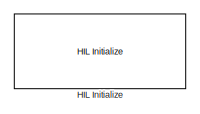
[diagram: root canvas - part 1/2, top left region]
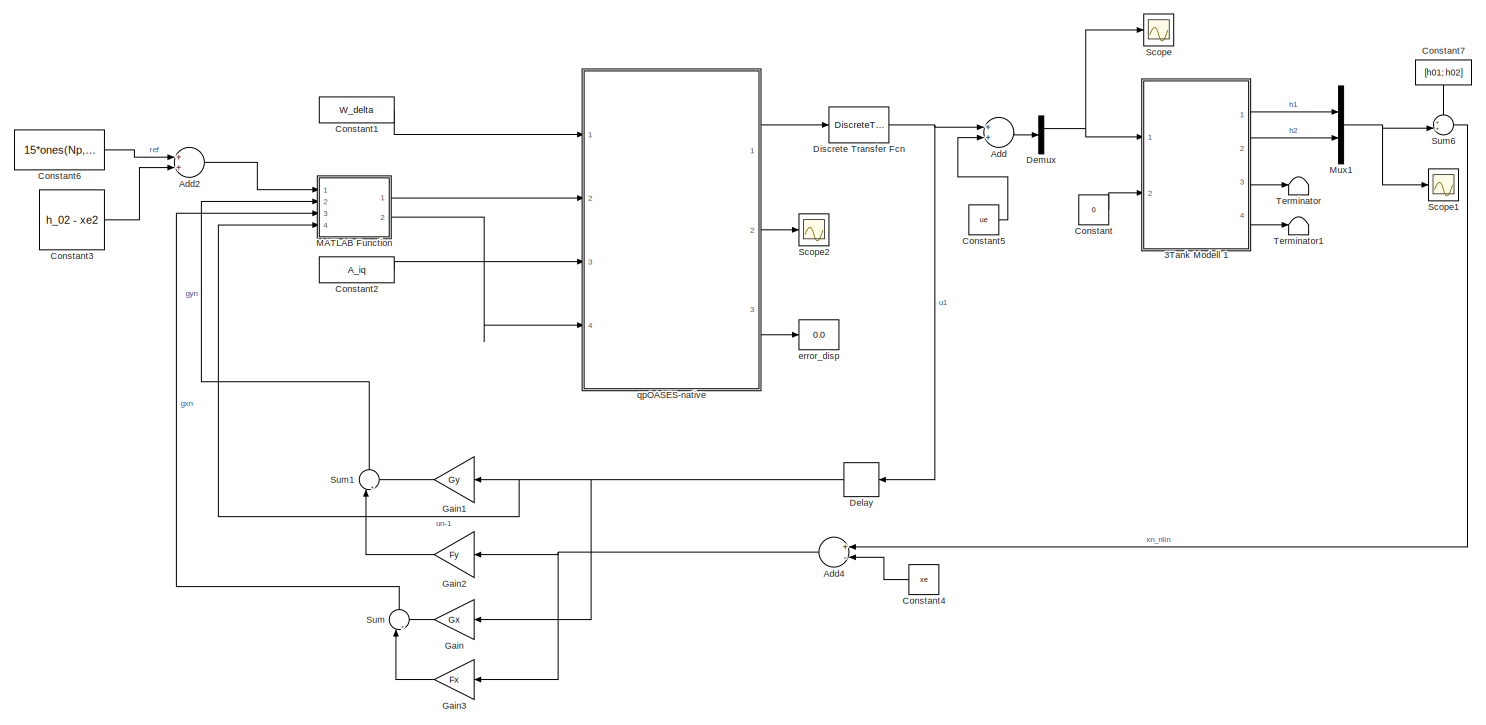
[diagram: root canvas - part 2/2, most of the canvas]
MODEL slx_f061217825dd
KIND model
CONFIG AbsTol = auto
CONFIG EnableMultiTasking = on
CONFIG FixedStep = Td
CONFIG MaxStep = auto
CONFIG MinStep = auto
CONFIG RelTol = 1e-3
CONFIG SampleTimeConstraint = Unconstrained
CONFIG Solver = ode1
CONFIG SolverName = ode1
CONFIG StartTime = 0.0
CONFIG StopTime = inf
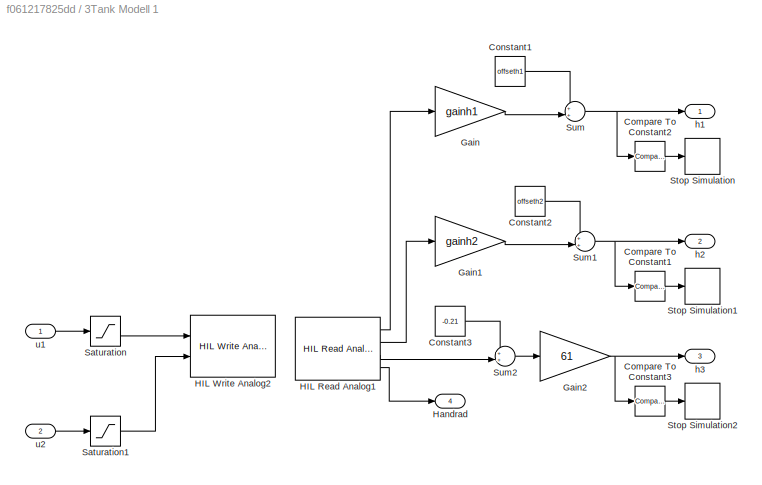
BLOCK [SubSystem] 3Tank Modell 1
  Ports = [2, 4]
  RequestExecContextInheritance = off
BLOCK [Reference] 3Tank Modell 1/Compare To Constant1  REF=simulink/Logic and Bit
Operations/Compare
To Constant
  Ports = [1, 1]
  SourceBlock = simulink/Logic and Bit\nOperations/Compare\nTo Constant
  SourceProductBaseCode = SL
  SourceProductName = Simulink
  SourceType = Compare To Constant
BLOCK [Reference] 3Tank Modell 1/Compare To Constant2  REF=simulink/Logic and Bit
Operations/Compare
To Constant
  Ports = [1, 1]
  SourceBlock = simulink/Logic and Bit\nOperations/Compare\nTo Constant
  SourceProductBaseCode = SL
  SourceProductName = Simulink
  SourceType = Compare To Constant
BLOCK [Reference] 3Tank Modell 1/Compare To Constant3  REF=simulink/Logic and Bit
Operations/Compare
To Constant
  Commented = on
  Ports = [1, 1]
  SourceBlock = simulink/Logic and Bit\nOperations/Compare\nTo Constant
  SourceProductBaseCode = SL
  SourceProductName = Simulink
  SourceType = Compare To Constant
BLOCK [Constant] 3Tank Modell 1/Constant1
  Value = offseth1
BLOCK [Constant] 3Tank Modell 1/Constant2
  Value = offseth2
BLOCK [Constant] 3Tank Modell 1/Constant3
  Value = -0.21
BLOCK [Gain] 3Tank Modell 1/Gain
  Gain = gainh1
  OutDataTypeStr = Inherit: Inherit via internal rule
  ParamDataTypeStr = Inherit: Inherit via internal rule
  SaturateOnIntegerOverflow = off
BLOCK [Gain] 3Tank Modell 1/Gain1
  Gain = gainh2
  OutDataTypeStr = Inherit: Inherit via internal rule
  ParamDataTypeStr = Inherit: Inherit via internal rule
  SaturateOnIntegerOverflow = off
BLOCK [Gain] 3Tank Modell 1/Gain2
  Gain = 61
  OutDataTypeStr = Inherit: Inherit via internal rule
  ParamDataTypeStr = Inherit: Inherit via internal rule
  SaturateOnIntegerOverflow = off
BLOCK [Reference] 3Tank Modell 1/HIL Read Analog1  REF=quarc_library/Data Acquisition/Generic/Immediate I//O/HIL Read Analog
  AttributesFormatString = (%<object_name>)
  Ports = [0, 4]
  SourceBlock = quarc_library/Data Acquisition/Generic/Immediate I//O/HIL Read Analog
  SourceProductName = QUARC Targets
  SourceType = HIL Read Analog
  UserDataPersistent = on
BLOCK [Reference] 3Tank Modell 1/HIL Write Analog2  REF=quarc_library/Data Acquisition/Generic/Immediate I//O/HIL Write Analog
  AttributesFormatString = (%<object_name>)
  Ports = [2]
  SourceBlock = quarc_library/Data Acquisition/Generic/Immediate I//O/HIL Write Analog
  SourceProductName = QUARC Targets
  SourceType = HIL Write Analog
  UserDataPersistent = on
BLOCK [Outport] 3Tank Modell 1/Handrad
  IconDisplay = Port number
  Port = 4
BLOCK [Saturate] 3Tank Modell 1/Saturation
  InputPortMap = u0
  LowerLimit = 0
  Ports = [1, 1]
  UpperLimit = 10
BLOCK [Saturate] 3Tank Modell 1/Saturation1
  InputPortMap = u0
  LowerLimit = 0
  Ports = [1, 1]
  UpperLimit = 10
BLOCK [Stop] 3Tank Modell 1/Stop Simulation
BLOCK [Stop] 3Tank Modell 1/Stop Simulation1
BLOCK [Stop] 3Tank Modell 1/Stop Simulation2
  Commented = on
BLOCK [Sum] 3Tank Modell 1/Sum
  IconShape = round
  InputSameDT = off
  Inputs = ++|
  OutDataTypeStr = Inherit: Inherit via internal rule
  Ports = [2, 1]
  SaturateOnIntegerOverflow = off
BLOCK [Sum] 3Tank Modell 1/Sum1
  IconShape = round
  InputSameDT = off
  Inputs = ++|
  OutDataTypeStr = Inherit: Inherit via internal rule
  Ports = [2, 1]
  SaturateOnIntegerOverflow = off
BLOCK [Sum] 3Tank Modell 1/Sum2
  IconShape = round
  InputSameDT = off
  Inputs = ++|
  OutDataTypeStr = Inherit: Inherit via internal rule
  Ports = [2, 1]
  SaturateOnIntegerOverflow = off
BLOCK [Outport] 3Tank Modell 1/h1
  IconDisplay = Port number
BLOCK [Outport] 3Tank Modell 1/h2
  IconDisplay = Port number
  Port = 2
BLOCK [Outport] 3Tank Modell 1/h3
  IconDisplay = Port number
  Port = 3
BLOCK [Inport] 3Tank Modell 1/u1
  IconDisplay = Port number
BLOCK [Inport] 3Tank Modell 1/u2
  IconDisplay = Port number
  Port = 2
BLOCK [Sum] Add
  InputSameDT = off
  OutDataTypeStr = Inherit: Inherit via internal rule
  Ports = [2, 1]
  SaturateOnIntegerOverflow = off
BLOCK [Sum] Add2
  InputSameDT = off
  OutDataTypeStr = Inherit: Inherit via internal rule
  Ports = [2, 1]
  SaturateOnIntegerOverflow = off
BLOCK [Sum] Add4
  InputSameDT = off
  Inputs = +-
  OutDataTypeStr = Inherit: Inherit via internal rule
  Ports = [2, 1]
  SaturateOnIntegerOverflow = off
BLOCK [Constant] Constant
  Value = 0
BLOCK [Constant] Constant1
  Value = W_delta
BLOCK [Constant] Constant2
  Value = A_iq
BLOCK [Constant] Constant3
  Value = h_02 - xe2
BLOCK [Constant] Constant4
  Value = xe
BLOCK [Constant] Constant5
  Value = ue
BLOCK [Constant] Constant6
  Value = 15*ones(Np,1)
BLOCK [Constant] Constant7
  Value = [h01; h02]
BLOCK [Delay] Delay
  DelayLength = 1
  InitialCondition = [0;0]
  InputPortMap = u0
  Ports = [1, 1]
  SampleTime = Td
BLOCK [Demux] Demux
  DisplayOption = bar
  Outputs = 2
  Ports = [1, 2]
BLOCK [DiscreteTransferFcn] Discrete Transfer Fcn
  Denominator = [1 -1]
  InitialStates = [0;0]
  InputPortMap = u0
  Numerator = [1 0]
  Ports = [1, 1]
  SampleTime = Td
BLOCK [Gain] Gain
  Gain = Gx
  Multiplication = Matrix(K*u)
  OutDataTypeStr = Inherit: Inherit via internal rule
  ParamDataTypeStr = Inherit: Inherit via internal rule
  SaturateOnIntegerOverflow = off
BLOCK [Gain] Gain1
  Gain = Gy
  Multiplication = Matrix(K*u)
  OutDataTypeStr = Inherit: Inherit via internal rule
  ParamDataTypeStr = Inherit: Inherit via internal rule
  SaturateOnIntegerOverflow = off
BLOCK [Gain] Gain2
  Gain = Fy
  Multiplication = Matrix(K*u)
  OutDataTypeStr = Inherit: Inherit via internal rule
  ParamDataTypeStr = Inherit: Inherit via internal rule
  SaturateOnIntegerOverflow = off
BLOCK [Gain] Gain3
  Gain = Fx
  Multiplication = Matrix(K*u)
  OutDataTypeStr = Inherit: Inherit via internal rule
  ParamDataTypeStr = Inherit: Inherit via internal rule
  SaturateOnIntegerOverflow = off
BLOCK [Reference] HIL Initialize  REF=quarc_library/Data Acquisition/Generic/Configuration/HIL Initialize
  AttributesFormatString = %<object_name> (%<board_type>-%<board_number>)
  Ports = []
  SourceBlock = quarc_library/Data Acquisition/Generic/Configuration/HIL Initialize
  SourceProductName = QUARC Targets
  SourceType = HIL Initialize
  UserDataPersistent = on
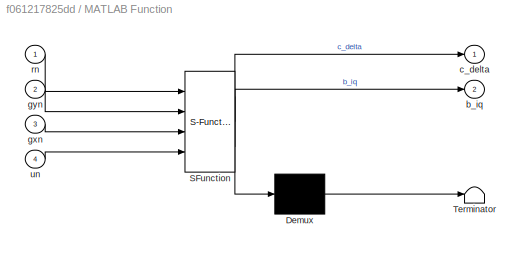
BLOCK [SubSystem] MATLAB Function
  ErrorFcn = Stateflow.Translate.translate
  PermitHierarchicalResolution = ExplicitOnly
  Ports = [4, 2]
  RequestExecContextInheritance = off
  SFBlockType = MATLAB Function
  TreatAsAtomicUnit = on
BLOCK [Demux] MATLAB Function/ Demux 
  Outputs = 1
  Ports = [1, 1]
BLOCK [S-Function] MATLAB Function/ SFunction 
  EnableBusSupport = on
  FunctionName = sf_sfun
  Parameters = Hy,L,Qy,roh,u_max,u_min,x_max,x_min
  PortCounts = [4 3]
  Ports = [4, 3]
  SFcnIsStateOwnerBlock = off
  SFunctionDeploymentMode = off
  Tag = Stateflow S-Function MPC 2
BLOCK [Terminator] MATLAB Function/ Terminator 
BLOCK [Outport] MATLAB Function/b_iq
  IconDisplay = Port number
  Port = 2
BLOCK [Outport] MATLAB Function/c_delta
  IconDisplay = Port number
BLOCK [Inport] MATLAB Function/gxn
  IconDisplay = Port number
  Port = 3
BLOCK [Inport] MATLAB Function/gyn
  IconDisplay = Port number
  Port = 2
BLOCK [Inport] MATLAB Function/rn
  IconDisplay = Port number
BLOCK [Inport] MATLAB Function/un
  IconDisplay = Port number
  Port = 4
BLOCK [Mux] Mux1
  DisplayOption = bar
  Inputs = 2
  Ports = [2, 1]
BLOCK [Scope] Scope
  Floating = off
  NumInputPorts = 1
  Ports = [1]
  ScopeSpecificationString = Simulink.scopes.TimeScopeBlockCfg('CurrentConfiguration', extmgr.ConfigurationSet(extmgr.Configuration('Core','General UI',true),extmgr.Configuration('Core','Source UI',true),extmgr.Configuration('Sources','WiredSimulink',true),extmgr.Configuration('Visuals','Time Domain',true,'SerializedDisplays',{struct('MinYLimReal','9.99312','MaxYLimReal','10.06191','YLabelReal','','MinYLimMag','9.99312','MaxY...<+1359ch>
BLOCK [Scope] Scope1
  Floating = off
  NumInputPorts = 1
  Ports = [1]
  ScopeSpecificationString = Simulink.scopes.TimeScopeBlockCfg('CurrentConfiguration', extmgr.ConfigurationSet(extmgr.Configuration('Core','General UI',true),extmgr.Configuration('Core','Source UI',true),extmgr.Configuration('Sources','WiredSimulink',true,'DataLoggingVariableName','ScopeData2'),extmgr.Configuration('Visuals','Time Domain',true,'SerializedDisplays',{struct('MinYLimReal','-1.78347','MaxYLimReal','15.66658','YLa...<+1731ch>
BLOCK [Scope] Scope2
  Floating = off
  NumInputPorts = 1
  Ports = [1]
  ScopeSpecificationString = Simulink.scopes.TimeScopeBlockCfg('CurrentConfiguration', extmgr.ConfigurationSet(extmgr.Configuration('Core','General UI',true),extmgr.Configuration('Core','Source UI',true),extmgr.Configuration('Sources','WiredSimulink',true,'DataLoggingVariableName','ScopeData1'),extmgr.Configuration('Visuals','Time Domain',true,'SerializedDisplays',{struct('MinYLimReal','-2.00000','MaxYLimReal','18.00000','YLa...<+1393ch>
BLOCK [Sum] Sum
  IconShape = round
  InputSameDT = off
  Inputs = |++
  OutDataTypeStr = Inherit: Inherit via internal rule
  Ports = [2, 1]
  SaturateOnIntegerOverflow = off
BLOCK [Sum] Sum1
  IconShape = round
  InputSameDT = off
  Inputs = |++
  OutDataTypeStr = Inherit: Inherit via internal rule
  Ports = [2, 1]
  SaturateOnIntegerOverflow = off
BLOCK [Sum] Sum6
  IconShape = round
  InputSameDT = off
  Inputs = ++|
  OutDataTypeStr = Inherit: Inherit via internal rule
  Ports = [2, 1]
  SaturateOnIntegerOverflow = off
BLOCK [Terminator] Terminator
BLOCK [Terminator] Terminator1
BLOCK [Display] error_disp
  Decimation = 1
  Ports = [1]
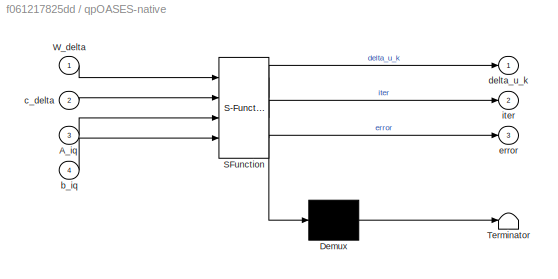
BLOCK [SubSystem] qpOASES-native
  ErrorFcn = Stateflow.Translate.translate
  PermitHierarchicalResolution = ExplicitOnly
  Ports = [4, 3]
  RequestExecContextInheritance = off
  SFBlockType = MATLAB Function
  TreatAsAtomicUnit = on
BLOCK [Demux] qpOASES-native/ Demux 
  Outputs = 1
  Ports = [1, 1]
BLOCK [S-Function] qpOASES-native/ SFunction 
  EnableBusSupport = on
  FunctionName = sf_sfun
  Parameters = Nc,m
  PortCounts = [4 4]
  Ports = [4, 4]
  SFcnIsStateOwnerBlock = off
  SFunctionDeploymentMode = off
  Tag = Stateflow S-Function MPC 5
BLOCK [Terminator] qpOASES-native/ Terminator 
BLOCK [Inport] qpOASES-native/A_iq
  IconDisplay = Port number
  Port = 3
BLOCK [Inport] qpOASES-native/W_delta
  IconDisplay = Port number
BLOCK [Inport] qpOASES-native/b_iq
  IconDisplay = Port number
  Port = 4
BLOCK [Inport] qpOASES-native/c_delta
  IconDisplay = Port number
  Port = 2
BLOCK [Outport] qpOASES-native/delta_u_k
  IconDisplay = Port number
BLOCK [Outport] qpOASES-native/error
  IconDisplay = Port number
  Port = 3
BLOCK [Outport] qpOASES-native/iter
  IconDisplay = Port number
  Port = 2
LINE 3Tank Modell 1/Compare To Constant1:1 -> 3Tank Modell 1/Stop Simulation1:1
LINE 3Tank Modell 1/Compare To Constant2:1 -> 3Tank Modell 1/Stop Simulation:1
LINE 3Tank Modell 1/Compare To Constant3:1 -> 3Tank Modell 1/Stop Simulation2:1
LINE 3Tank Modell 1/Constant1:1 -> 3Tank Modell 1/Sum:1
LINE 3Tank Modell 1/Constant2:1 -> 3Tank Modell 1/Sum1:1
LINE 3Tank Modell 1/Constant3:1 -> 3Tank Modell 1/Sum2:1
LINE 3Tank Modell 1/Gain1:1 -> 3Tank Modell 1/Sum1:2
NET 3Tank Modell 1/Gain2:1 -> 3Tank Modell 1/Compare To Constant3:1, 3Tank Modell 1/h3:1
LINE 3Tank Modell 1/Gain:1 -> 3Tank Modell 1/Sum:2
LINE 3Tank Modell 1/HIL Read Analog1:1 -> 3Tank Modell 1/Gain:1
LINE 3Tank Modell 1/HIL Read Analog1:2 -> 3Tank Modell 1/Gain1:1
LINE 3Tank Modell 1/HIL Read Analog1:3 -> 3Tank Modell 1/Sum2:2
LINE 3Tank Modell 1/HIL Read Analog1:4 -> 3Tank Modell 1/Handrad:1
LINE 3Tank Modell 1/Saturation1:1 -> 3Tank Modell 1/HIL Write Analog2:2
LINE 3Tank Modell 1/Saturation:1 -> 3Tank Modell 1/HIL Write Analog2:1
NET 3Tank Modell 1/Sum1:1 -> 3Tank Modell 1/Compare To Constant1:1, 3Tank Modell 1/h2:1
LINE 3Tank Modell 1/Sum2:1 -> 3Tank Modell 1/Gain2:1
NET 3Tank Modell 1/Sum:1 -> 3Tank Modell 1/Compare To Constant2:1, 3Tank Modell 1/h1:1
LINE 3Tank Modell 1/u1:1 -> 3Tank Modell 1/Saturation:1
LINE 3Tank Modell 1/u2:1 -> 3Tank Modell 1/Saturation1:1
LINE 3Tank Modell 1:1 -> Mux1:1
LINE 3Tank Modell 1:2 -> Mux1:2
LINE 3Tank Modell 1:3 -> Terminator:1
LINE 3Tank Modell 1:4 -> Terminator1:1
LINE Add2:1 -> MATLAB Function:1
NET Add4:1 -> Gain2:1, Gain3:1
LINE Add:1 -> Demux:1
LINE Constant1:1 -> qpOASES-native:1
LINE Constant2:1 -> qpOASES-native:3
LINE Constant3:1 -> Add2:2
LINE Constant4:1 -> Add4:2
LINE Constant5:1 -> Add:2
LINE Constant6:1 -> Add2:1
LINE Constant7:1 -> Sum6:1
LINE Constant:1 -> 3Tank Modell 1:2
NET Delay:1 -> Gain1:1, Gain:1, MATLAB Function:4
NET Demux:1 -> 3Tank Modell 1:1, Scope:1
NET Discrete Transfer Fcn:1 -> Add:1, Delay:1
LINE Gain1:1 -> Sum1:2
LINE Gain2:1 -> Sum1:1
LINE Gain3:1 -> Sum:1
LINE Gain:1 -> Sum:2
LINE MATLAB Function:1 -> qpOASES-native:2
LINE MATLAB Function:2 -> qpOASES-native:4
NET Mux1:1 -> Scope1:1, Sum6:2
LINE Sum1:1 -> MATLAB Function:2
LINE Sum6:1 -> Add4:1
LINE Sum:1 -> MATLAB Function:3
LINE qpOASES-native:1 -> Discrete Transfer Fcn:1
LINE qpOASES-native:2 -> Scope2:1
LINE qpOASES-native:3 -> error_disp:1
note: NET lines group one-source signal fan-out (src -> all destinations, sorted); 1:1 wires keep LINE
CHART MATLAB Function states=1 transitions=1
  STATE_LABEL 'eML_blk_kernel()'
  STATE_LABEL "SCRIPT:\nfunction [c_delta, b_iq] = fcn(rn, gyn, gxn, un, Qy, L, u_min, u_max, x_min, x_max, Hy, roh)\nw_bar = [L*un-u_min;u_max-L*un;gxn-x_min;x_max-gxn];\nen = gyn - rn;\nc_delta = [2'*Hy'*Qy*en; roh];\nb_iq = [w_bar; roh];\n"
CHART qpOASES-native states=1 transitions=1
  STATE_LABEL 'eML_blk_kernel()'
  STATE_LABEL "SCRIPT:\nfunction [delta_u_k, iter, error] = fcn(W_delta, c_delta, A_iq, b_iq, m, Nc)\n    \n    persistent initialized options;\n    % qpOASES uses row-major matrix storage (Matlab: column-major)!!!\n    A_iq_tr = A_iq';\n    \n    delta_u_hat_k = coder.nullcopy(zeros(m * Nc, 1));\n    lambda = coder.nullcopy(zeros(size(W_delta, 1) + size(A_iq, 1), 1));\n    J = coder.nullcopy(double(0));\n    iter = int32...<+767ch>"
